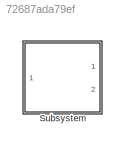
MODEL slx_72687ada79ef
KIND library
CONFIG AbsTol = auto
CONFIG EnableMultiTasking = off
CONFIG FixedStep = auto
CONFIG MaxStep = auto
CONFIG MinStep = auto
CONFIG RelTol = 1e-3
CONFIG SampleTimeConstraint = Unconstrained
CONFIG Solver = VariableStepAuto
CONFIG SolverName = VariableStepAuto
CONFIG StartTime = 0.0
CONFIG StopTime = 10.0
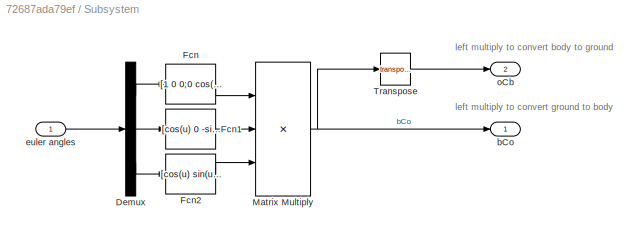
BLOCK [SubSystem] Subsystem
  Ports = [1, 2]
  RequestExecContextInheritance = off
BLOCK [Demux] Subsystem/Demux
  DisplayOption = bar
  Outputs = 3
  Ports = [1, 3]
BLOCK [Fcn] Subsystem/Fcn
  Expr = [1 0 0;0 cos(u) sin(u);0 -sin(u) cos(u)]
BLOCK [Fcn] Subsystem/Fcn1
  Expr = [cos(u) 0 -sin(u);0 1 0;sin(u) 0 cos(u)]
BLOCK [Fcn] Subsystem/Fcn2
  Expr = [cos(u) sin(u) 0;-sin(u) cos(u) 0;0 0 1]
BLOCK [Product] Subsystem/Matrix Multiply
  InputSameDT = off
  Inputs = 3
  Multiplication = Matrix(*)
  OutDataTypeStr = Inherit: Inherit via internal rule
  Ports = [3, 1]
  RndMeth = Floor
  SaturateOnIntegerOverflow = off
BLOCK [Math] Subsystem/Transpose
  Operator = transpose
  Ports = [1, 1]
BLOCK [Outport] Subsystem/bCo
  IconDisplay = Port number
BLOCK [Inport] Subsystem/euler angles 
  IconDisplay = Port number
BLOCK [Outport] Subsystem/oCb
  IconDisplay = Port number
  Port = 2
ANNOTATION Subsystem: left multiply to convert body to ground
ANNOTATION Subsystem: left multiply to convert ground to body
LINE Subsystem/Demux:1 -> Subsystem/Fcn:1
LINE Subsystem/Demux:2 -> Subsystem/Fcn1:1
LINE Subsystem/Demux:3 -> Subsystem/Fcn2:1
LINE Subsystem/Fcn1:1 -> Subsystem/Matrix Multiply:2
LINE Subsystem/Fcn2:1 -> Subsystem/Matrix Multiply:3
LINE Subsystem/Fcn:1 -> Subsystem/Matrix Multiply:1
NET Subsystem/Matrix Multiply:1 -> Subsystem/Transpose:1, Subsystem/bCo:1
LINE Subsystem/Transpose:1 -> Subsystem/oCb:1
LINE Subsystem/euler angles :1 -> Subsystem/Demux:1
note: NET lines group one-source signal fan-out (src -> all destinations, sorted); 1:1 wires keep LINE
